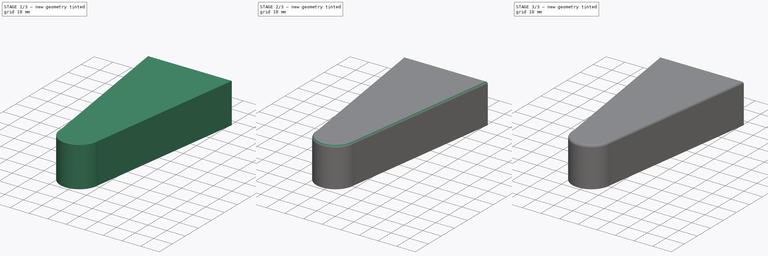
[diagram: build sequence overview — one tinted view per stage of 3, left to right]
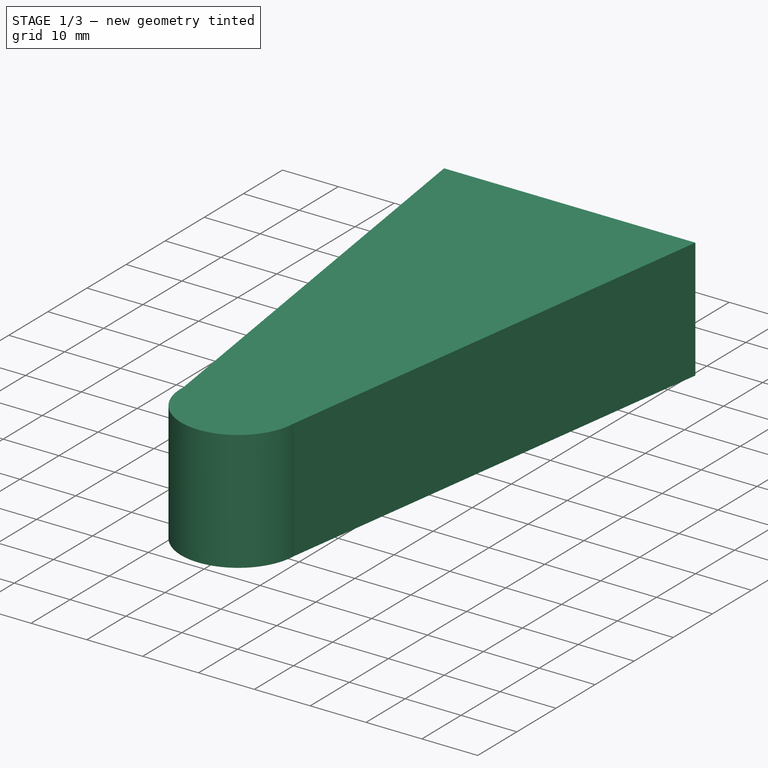
[diagram: stage 1 of 3 — iso view after this stage's code; geometry added in this stage tinted green]
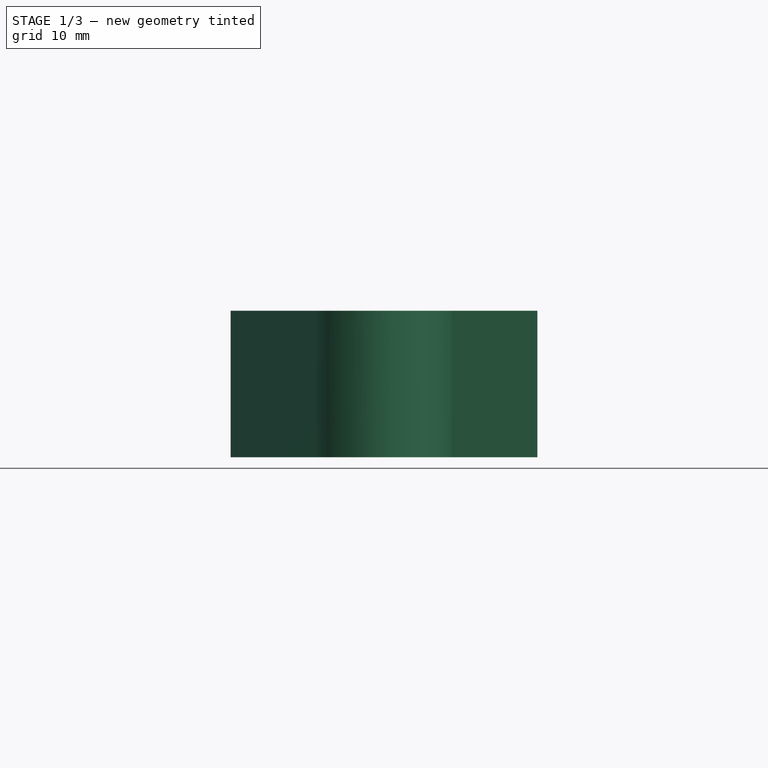
[diagram: stage 1 of 3 — front view after this stage's code; geometry added in this stage tinted green]
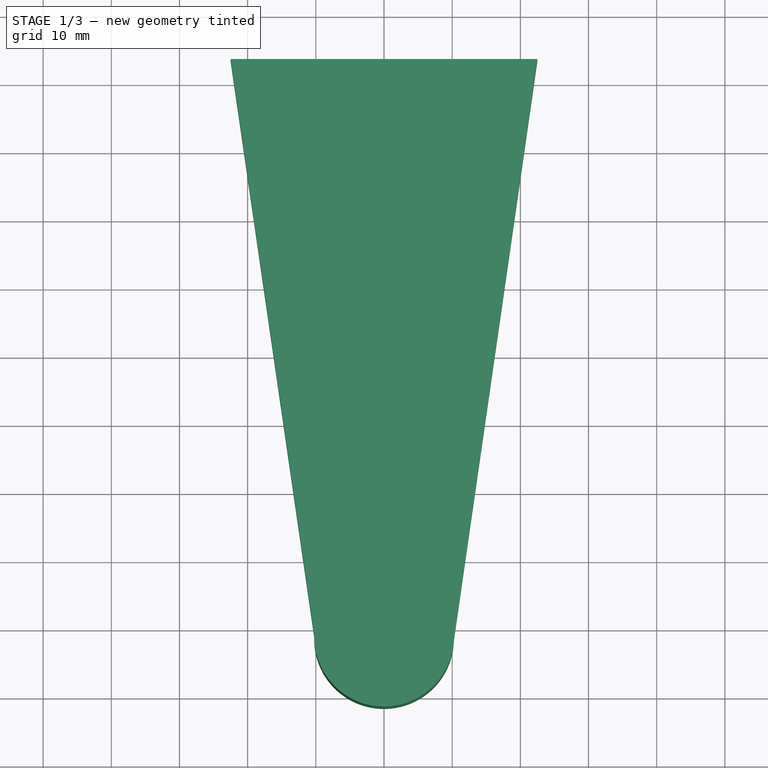
[diagram: stage 1 of 3 — top view after this stage's code; geometry added in this stage tinted green]
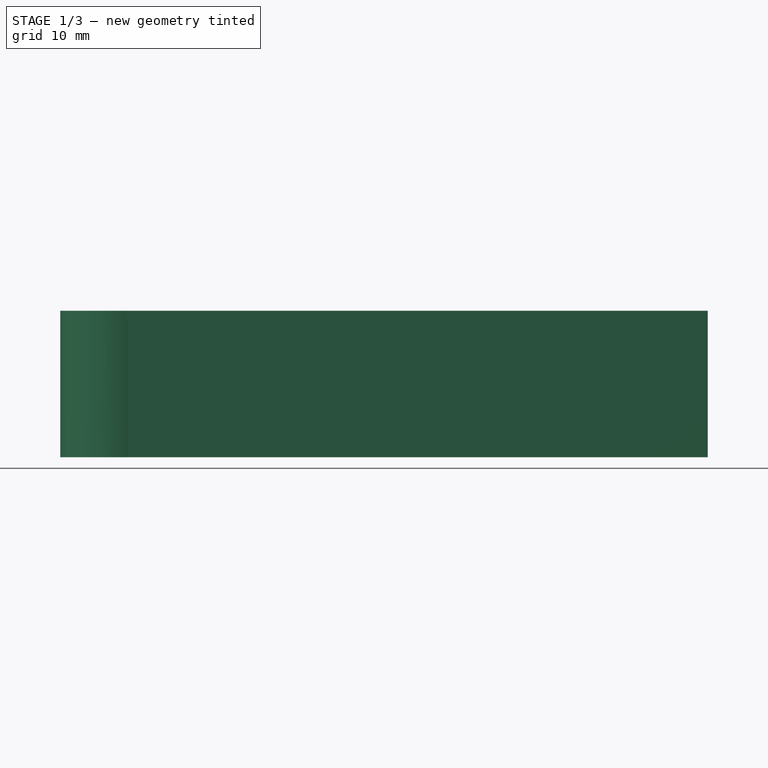
[diagram: stage 1 of 3 — right view after this stage's code; geometry added in this stage tinted green]
FCSTD DOCUMENT  (FreeCAD 2023.131R26244 +5365 (Git))
Label: Wine Fridge Cap
License: All rights reserved
LicenseURL: http://en.wikipedia.org/wiki/All_rights_reserved
objects: Sketcher::SketchObject×5, PartDesign::Pad×5, PartDesign::Fillet×1, PartDesign::Chamfer×1, PartDesign::Body×1
note: 32 computed .brp shape members not serialized (recipe doc carries the construction recipe); baked Part::Feature solids carry a one-line shape summary decoded from their .brp

FEATURE [Sketcher::SketchObject] Sketch
  ArcFitTolerance = 1e-06
  AttachmentSupport = -> [XY_Plane]
  ExternalBSplineMaxDegree = 5
  ExternalBSplineTolerance = 0.0001
  FullyConstrained = false
  InternalTolerance = 1e-06
  InvalidShape = false
  MakeInternals = false
  MapMode = 5
  Support = -> [XY_Plane]
  TreeRank = 11
  ValidateShape = true
  sketch-geometry (8):
    g0: ArcOfCircle CenterX=0 CenterY=8.75 CenterZ=0 NormalX=0 NormalY=0 NormalZ=1 AngleXU=0 Radius=8.75 StartAngle=3.14159 EndAngle=6.28319
    g1: LineSegment StartX=-21 StartY=92 StartZ=0 EndX=21 EndY=92 EndZ=0
    g2: LineSegment StartX=-8.75 StartY=8.75 StartZ=0 EndX=-21 EndY=92 EndZ=0
    g3: LineSegment StartX=8.75 StartY=8.75 StartZ=0 EndX=21 EndY=92 EndZ=0
    g4: ArcOfCircle CenterX=0 CenterY=8.75 CenterZ=0 NormalX=0 NormalY=0 NormalZ=1 AngleXU=0 Radius=10.25 StartAngle=3.11282 EndAngle=6.25441
    g5: LineSegment StartX=-22.5 StartY=93.5 StartZ=0 EndX=22.5 EndY=93.5 EndZ=0
    g6: LineSegment StartX=-22.5 StartY=93.5 StartZ=0 EndX=-10.2458 EndY=9.04488 EndZ=0
    g7: LineSegment StartX=22.5 StartY=93.5 StartZ=0 EndX=10.2458 EndY=8.45512 EndZ=0
  constraints (22):
    c: PointOnObject(g0,g-2)
    c: PointOnObject(g-1,g0)
    c: Symmetric(g1,g1,g-2)
    c: DistanceX(g1,g1) = 42
    c: Diameter(g0) = 17.5
    c: DistanceY(g-1,g1) = 92
    c: Coincident(g2,g1)
    c: Coincident(g3,g1)
    c: Coincident(g0,g3)
    c: Coincident(g0,g2)
    c: Symmetric(g0,g0,g0)
    c: Equal(g3,g2)
    c: Coincident(g4,g0)
    c: Diameter(g4) = 20.5
    c: Symmetric(g5,g5,g-2)
    c: DistanceX(g5,g5) = 45
    c: DistanceY(g1,g5) = 1.5
    c: Coincident(g6,g5)
    c: Coincident(g7,g5)
    c: Coincident(g6,g4)
    c: Coincident(g7,g4)
    c: Symmetric(g4,g4,g0)
FEATURE [PartDesign::Pad] Pad
  AddSubType = 0
  AlongSketchNormal = false
  AutoTaperInnerAngle = true
  CheckUpToFaceLimits = true
  ClaimChildren = false
  Direction = (0,0,1)
  Fit = 0
  FitJoin = 0
  InnerFit = 0
  InnerFitJoin = 0
  InvalidShape = false
  Length = 20
  Length2 = 100
  Linearize = true
  NewSolid = false
  Profile = -> Sketch
  Suppress = false
  TaperInnerAngle = 0
  TaperInnerAngleRev = 0
  TreeRank = 12
  Type = 0
  ValidateShape = true
  _ProfileBasedVersion = 1
FEATURE [Sketcher::SketchObject] Sketch001
  ArcFitTolerance = 1e-06
  AttachmentSupport = -> [Pad]
  ExternalBSplineMaxDegree = 5
  ExternalBSplineTolerance = 0.0001
  FullyConstrained = false
  InternalTolerance = 1e-06
  InvalidShape = false
  MakeInternals = false
  MapMode = 5
  Placement = pos=(0,0,20) rot=(0,0,1;0rad)
  Support = -> [Pad]
  TreeRank = 13
  ValidateShape = true
  sketch-geometry (5):
    g0: ArcOfCircle CenterX=0 CenterY=8.75 CenterZ=0 NormalX=0 NormalY=0 NormalZ=1 AngleXU=0 Radius=10.25 StartAngle=3.08508 EndAngle=6.22667
    g1: LineSegment StartX=-22.5 StartY=93.5 StartZ=0 EndX=22.5 EndY=93.5 EndZ=0
    g2: LineSegment StartX=-22.5 StartY=93.5 StartZ=0 EndX=-10.2336 EndY=9.32895 EndZ=0
    g3: LineSegment StartX=22.5 StartY=93.5 StartZ=0 EndX=10.2336 EndY=8.17105 EndZ=0
    g4: GeomPoint [constr] X=0 Y=-1.5 Z=0
  constraints (13):
    c: PointOnObject(g0,g-2)
    c: Diameter(g0) = 20.5
    c: DistanceX(g1,g1) = 45
    c: DistanceY(g-1,g1) = 93.5
    c: Symmetric(g1,g1,g-2)
    c: Coincident(g2,g1)
    c: Coincident(g3,g1)
    c: Symmetric(g3,g2,g0)
    c: Coincident(g0,g3)
    c: Coincident(g0,g2)
    c: PointOnObject(g4,g0)
    c: PointOnObject(g4,g-2)
    c: DistanceY(g4,g-1) = 1.5
FEATURE [PartDesign::Pad] Pad001
  AddSubType = 0
  AlongSketchNormal = false
  AutoTaperInnerAngle = true
  BaseFeature = -> Pad
  CheckUpToFaceLimits = true
  ClaimChildren = false
  Direction = (0,0,1)
  Fit = 0
  FitJoin = 0
  InnerFit = 0
  InnerFitJoin = 0
  InvalidShape = false
  Length = 1.5
  Length2 = 100
  Linearize = true
  NewSolid = false
  Profile = -> Sketch001
  Suppress = false
  TaperInnerAngle = 0
  TaperInnerAngleRev = 0
  TreeRank = 14
  Type = 0
  ValidateShape = true
  _ProfileBasedVersion = 1
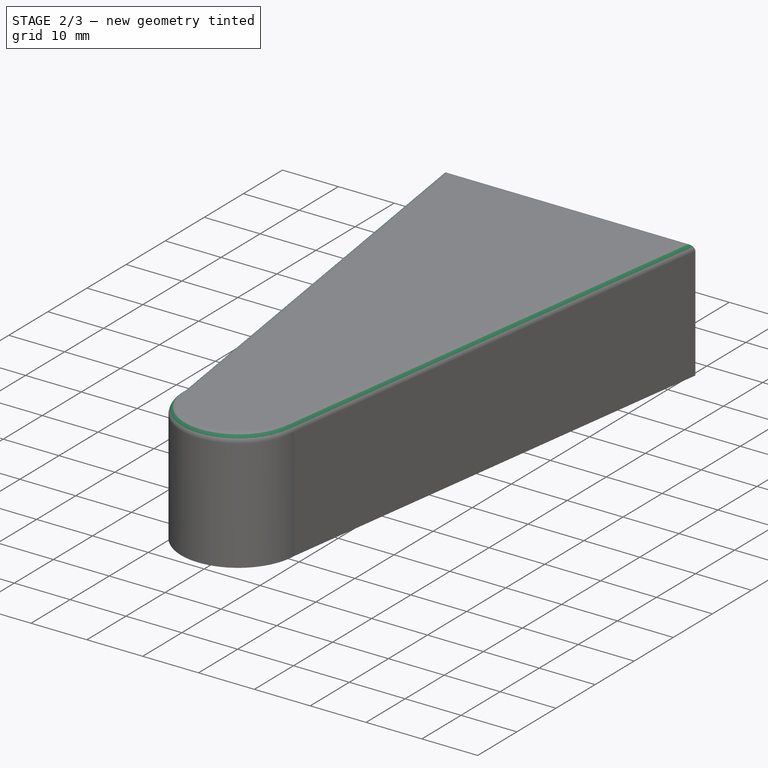
[diagram: stage 2 of 3 — iso view after this stage's code; geometry added in this stage tinted green]
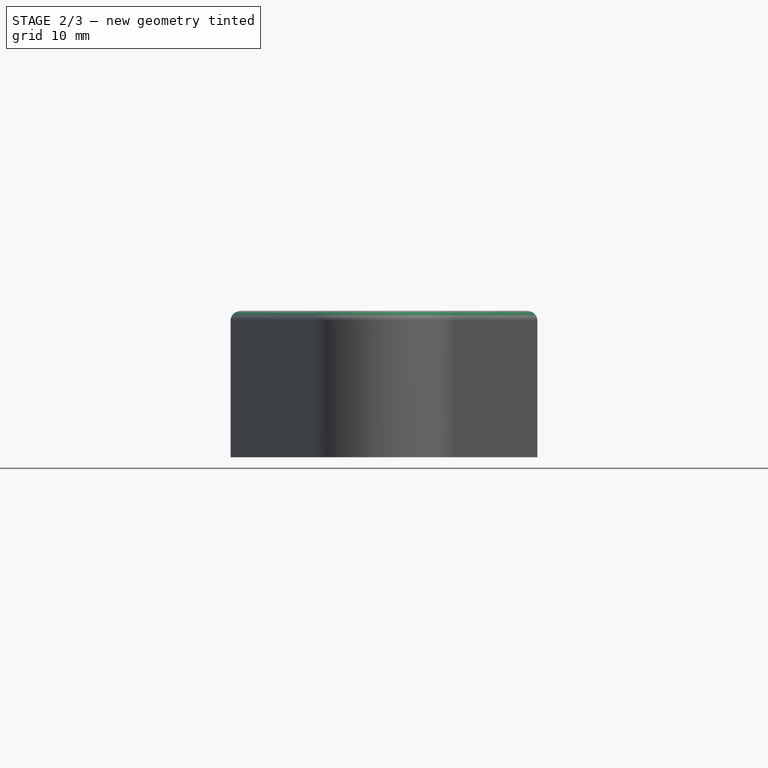
[diagram: stage 2 of 3 — front view after this stage's code; geometry added in this stage tinted green]
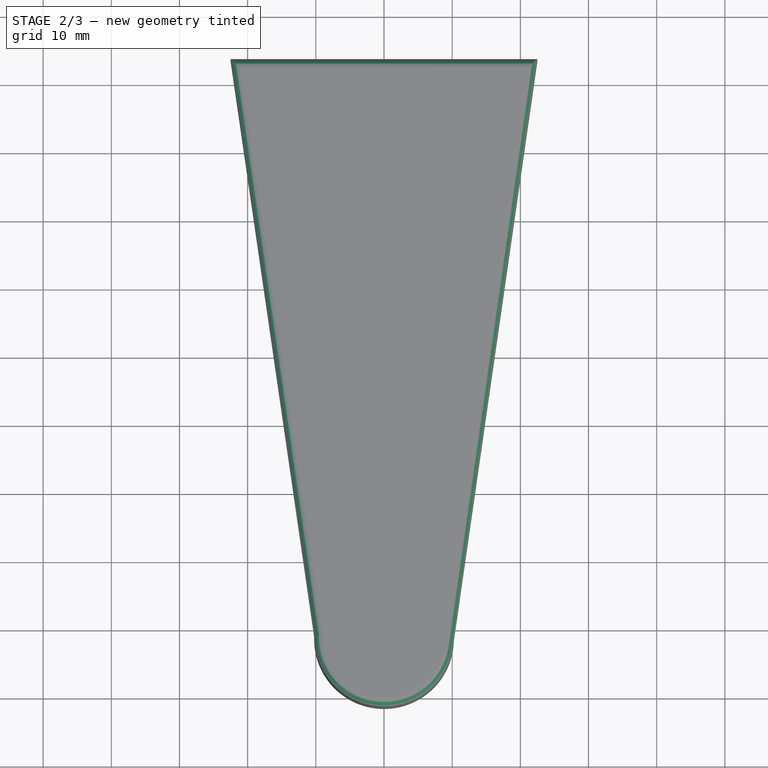
[diagram: stage 2 of 3 — top view after this stage's code; geometry added in this stage tinted green]
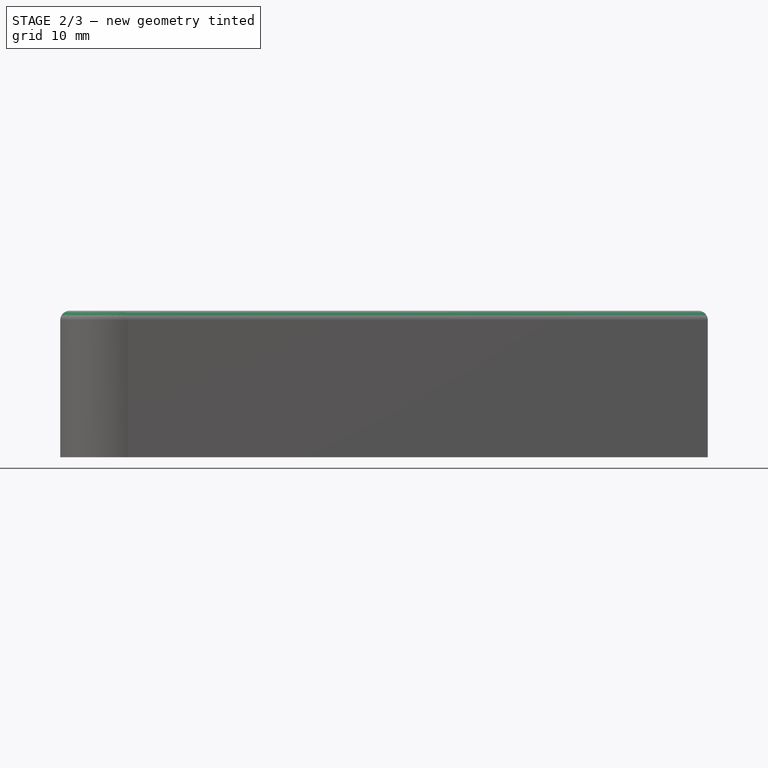
[diagram: stage 2 of 3 — right view after this stage's code; geometry added in this stage tinted green]
FEATURE [PartDesign::Fillet] Fillet
  AddSubType = 0
  Base = -> Pad001 [Face16]
  BaseFeature = -> Pad001
  InvalidShape = false
  NewSolid = false
  Radius = 1.4
  SupportTransform = false
  Suppress = false
  TreeRank = 15
  ValidateShape = true
FEATURE [Sketcher::SketchObject] Sketch002
  ArcFitTolerance = 1e-06
  AttachmentSupport = -> [YZ_Plane]
  ExternalBSplineMaxDegree = 5
  ExternalBSplineTolerance = 0.0001
  FullyConstrained = true
  InternalTolerance = 1e-06
  InvalidShape = false
  MakeInternals = false
  MapMode = 5
  Placement = pos=(0,0,0) rot=(0.57735,0.57735,0.57735;2.0944rad)
  Support = -> [YZ_Plane]
  TreeRank = 16
  ValidateShape = true
  sketch-geometry (1):
    g0: Circle CenterX=92 CenterY=1.5 CenterZ=0 NormalX=0 NormalY=0 NormalZ=1 AngleXU=0 Radius=1.5
  constraints (3):
    c: Diameter(g0) = 3
    c: DistanceY(g-1,g0) = 1.5
    c: DistanceX(g-1,g0) = 92
FEATURE [PartDesign::Pad] Pad002
  AddSubType = 0
  AlongSketchNormal = false
  AutoTaperInnerAngle = true
  BaseFeature = -> Fillet
  CheckUpToFaceLimits = true
  ClaimChildren = false
  Direction = (1,-2e-16,3e-16)
  Fit = 0
  FitJoin = 0
  InnerFit = 0
  InnerFitJoin = 0
  InvalidShape = false
  Length = 10
  Length2 = 10
  Linearize = true
  NewSolid = false
  Profile = -> Sketch002
  Suppress = false
  TaperInnerAngle = 0
  TaperInnerAngleRev = 0
  TreeRank = 17
  Type = 4
  ValidateShape = true
  _ProfileBasedVersion = 1
FEATURE [Sketcher::SketchObject] Sketch003
  ArcFitTolerance = 1e-06
  AttachmentSupport = -> [Pad002]
  ExternalBSplineMaxDegree = 5
  ExternalBSplineTolerance = 0.0001
  FullyConstrained = true
  InternalTolerance = 1e-06
  InvalidShape = false
  MakeInternals = false
  MapMode = 5
  Placement = pos=(-7.30431,-1.07481,0) rot=(0.521177,0.603479,0.603479;2.1807rad)
  Support = -> [Pad002]
  TreeRank = 18
  ValidateShape = true
  sketch-geometry (4):
    g0: LineSegment StartX=15 StartY=0 StartZ=0 EndX=25 EndY=0 EndZ=0
    g1: LineSegment StartX=25 StartY=0 StartZ=0 EndX=25 EndY=1.5 EndZ=0
    g2: LineSegment StartX=25 StartY=1.5 StartZ=0 EndX=15 EndY=1.5 EndZ=0
    g3: LineSegment StartX=15 StartY=1.5 StartZ=0 EndX=15 EndY=0 EndZ=0
  constraints (12):
    c: Coincident(g0,g1)
    c: Coincident(g1,g2)
    c: Coincident(g2,g3)
    c: Coincident(g3,g0)
    c: Horizontal(g0)
    c: Horizontal(g2)
    c: Vertical(g1)
    c: Vertical(g3)
    c: PointOnObject(g0,g-1)
    c: DistanceX(g0,g0) = 10
    c: DistanceY(g0,g1) = 1.5
    c: DistanceX(g-1,g0) = 15
FEATURE [PartDesign::Pad] Pad003
  AddSubType = 0
  AlongSketchNormal = false
  AutoTaperInnerAngle = true
  BaseFeature = -> Pad002
  CheckUpToFaceLimits = true
  ClaimChildren = false
  Direction = (0.989347,0.14558,0)
  Fit = 0
  FitJoin = 0
  InnerFit = 0
  InnerFitJoin = 0
  InvalidShape = false
  Length = 0.8
  Length2 = 100
  Linearize = true
  NewSolid = false
  Profile = -> Sketch003
  Suppress = false
  TaperInnerAngle = 0
  TaperInnerAngleRev = 0
  TreeRank = 19
  Type = 0
  ValidateShape = true
  _ProfileBasedVersion = 1
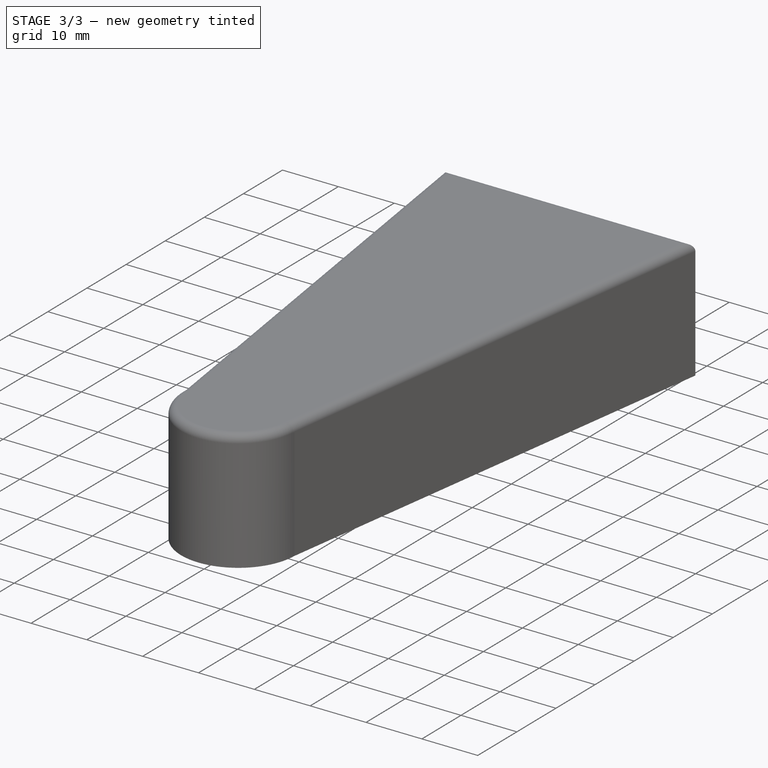
[diagram: stage 3 of 3 — iso view after this stage's code; geometry added in this stage tinted green]
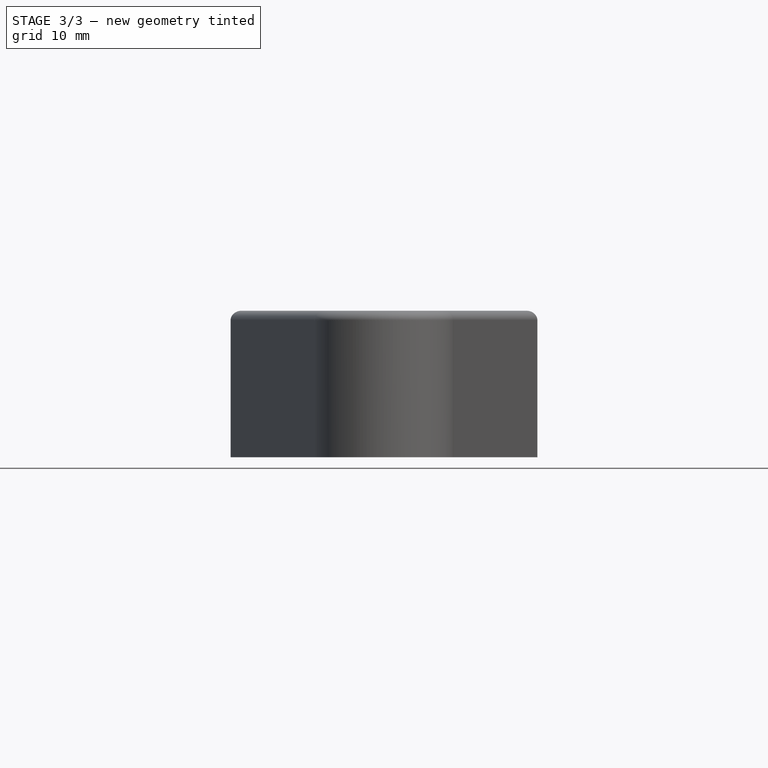
[diagram: stage 3 of 3 — front view after this stage's code; geometry added in this stage tinted green]
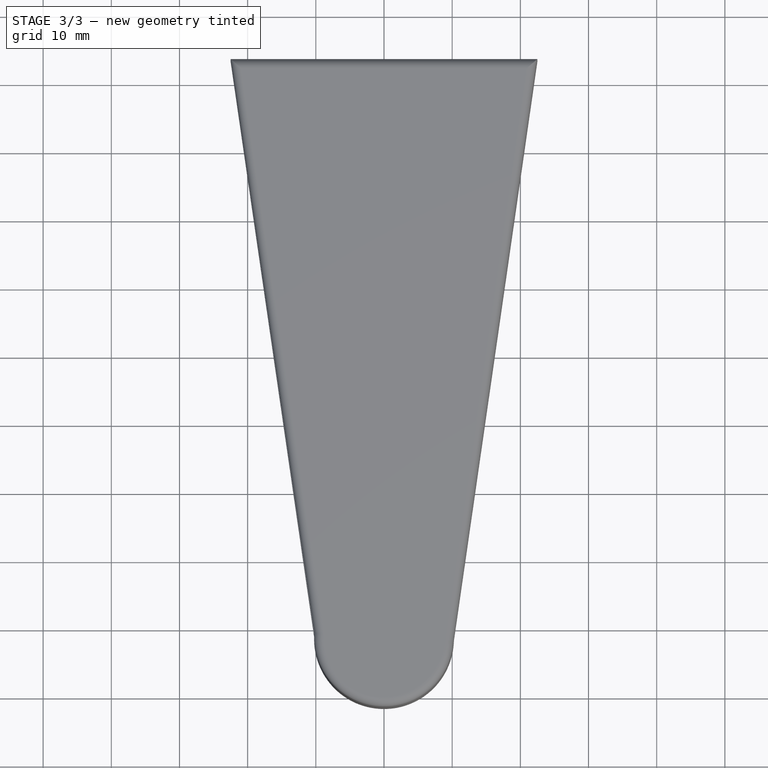
[diagram: stage 3 of 3 — top view after this stage's code; geometry added in this stage tinted green]
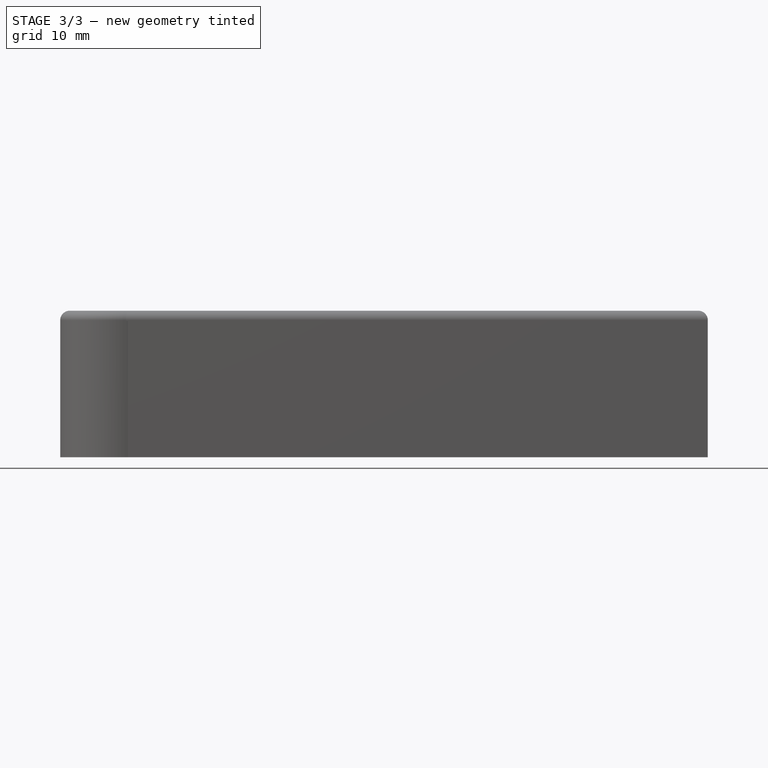
[diagram: stage 3 of 3 — right view after this stage's code; geometry added in this stage tinted green]
FEATURE [Sketcher::SketchObject] Sketch004
  ArcFitTolerance = 1e-06
  AttachmentSupport = -> [Pad003]
  ExternalBSplineMaxDegree = 5
  ExternalBSplineTolerance = 0.0001
  FullyConstrained = true
  InternalTolerance = 1e-06
  InvalidShape = false
  MakeInternals = false
  MapMode = 5
  Placement = pos=(7.30431,-1.07481,0) rot=(-0.521177,0.603479,0.603479;4.10248rad)
  Support = -> [Pad003]
  TreeRank = 20
  ValidateShape = true
  sketch-geometry (4):
    g0: LineSegment StartX=-15 StartY=0 StartZ=0 EndX=-25 EndY=0 EndZ=0
    g1: LineSegment StartX=-25 StartY=0 StartZ=0 EndX=-25 EndY=1.5 EndZ=0
    g2: LineSegment StartX=-25 StartY=1.5 StartZ=0 EndX=-15 EndY=1.5 EndZ=0
    g3: LineSegment StartX=-15 StartY=1.5 StartZ=0 EndX=-15 EndY=0 EndZ=0
  constraints (12):
    c: Coincident(g0,g1)
    c: Coincident(g1,g2)
    c: Coincident(g2,g3)
    c: Coincident(g3,g0)
    c: Horizontal(g0)
    c: Horizontal(g2)
    c: Vertical(g1)
    c: Vertical(g3)
    c: PointOnObject(g0,g-1)
    c: DistanceX(g0,g-1) = 15
    c: DistanceX(g0,g0) = 10
    c: DistanceY(g0,g2) = 1.5
FEATURE [PartDesign::Pad] Pad004
  AddSubType = 0
  AlongSketchNormal = false
  AutoTaperInnerAngle = true
  BaseFeature = -> Pad003
  CheckUpToFaceLimits = true
  ClaimChildren = false
  Direction = (-0.989347,0.14558,0)
  Fit = 0
  FitJoin = 0
  InnerFit = 0
  InnerFitJoin = 0
  InvalidShape = false
  Length = 0.8
  Length2 = 100
  Linearize = true
  NewSolid = false
  Profile = -> Sketch004
  Suppress = false
  TaperInnerAngle = 0
  TaperInnerAngleRev = 0
  TreeRank = 21
  Type = 0
  ValidateShape = true
  _ProfileBasedVersion = 1
FEATURE [PartDesign::Chamfer] Chamfer
  AddSubType = 0
  Angle = 45
  Base = -> Pad004 [Edge62,Edge77,Edge52,Edge72]
  BaseFeature = -> Pad004
  ChamferType = 0
  FlipDirection = false
  InvalidShape = false
  NewSolid = false
  Size = 0.7
  Size2 = 1
  SupportTransform = false
  Suppress = false
  TreeRank = 22
  ValidateShape = true
FEATURE [PartDesign::Body] Body
  AutoGroupSolids = false
  ClaimAllChildren = false
  ExportMode = 0
  Group = -> [Sketch,Pad,Sketch001,Pad001,Fillet,Sketch002,Pad002,Sketch003,Pad003,Sketch004,Pad004,Chamfer]
  InvalidShape = false
  Origin = -> Origin
  Tip = -> Chamfer
  TreeRank = 10
  ValidateShape = true
  _ExportChildren = -> [Pad,Pad001,Fillet,Pad002,Pad003,Pad004,Chamfer]
  _GroupVersion = 1
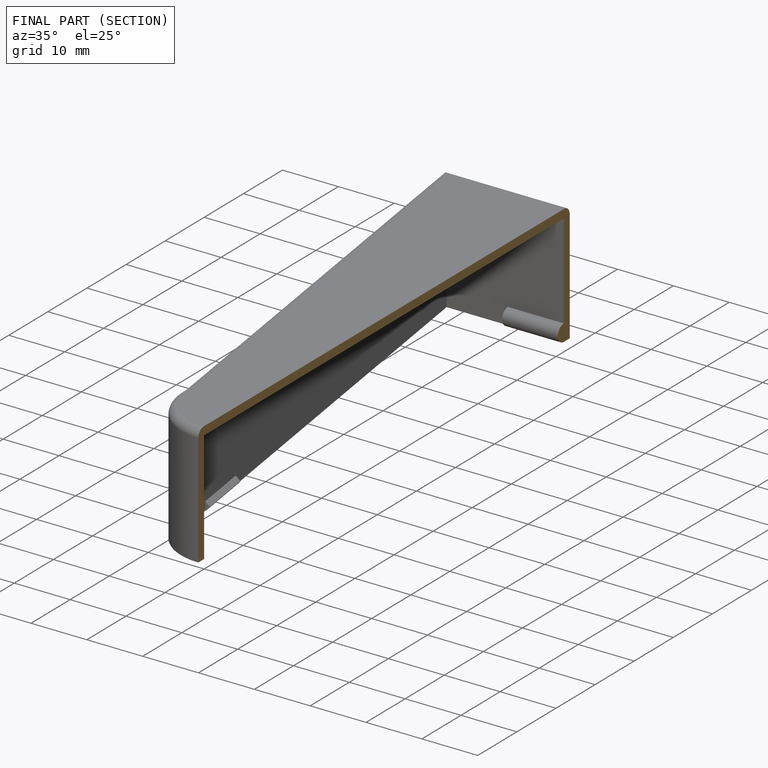
[diagram: finished part — half-section view (interior)]
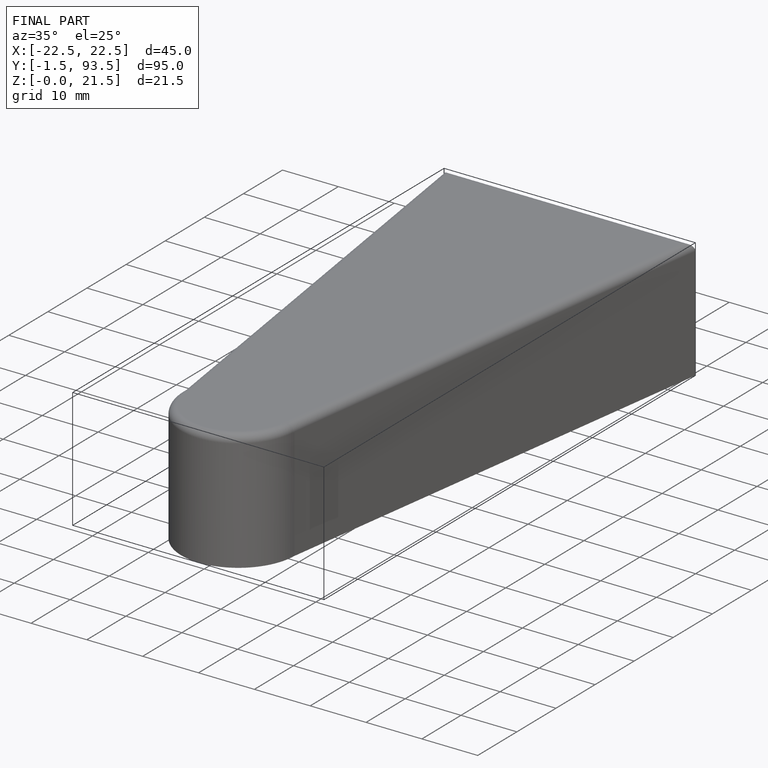
[diagram: finished part — iso view with bounding-box wireframe]
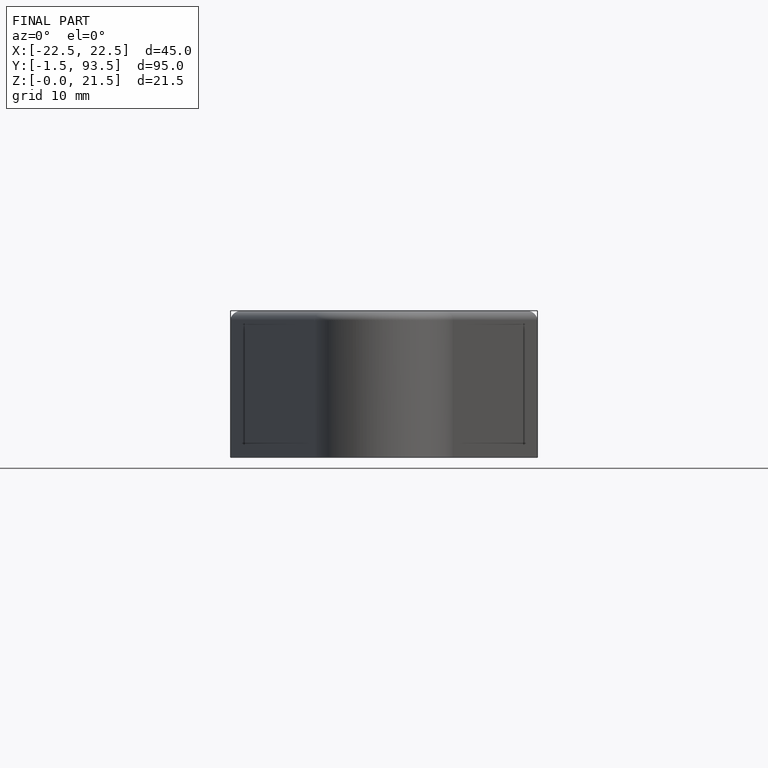
[diagram: finished part — front view with bounding-box wireframe]
